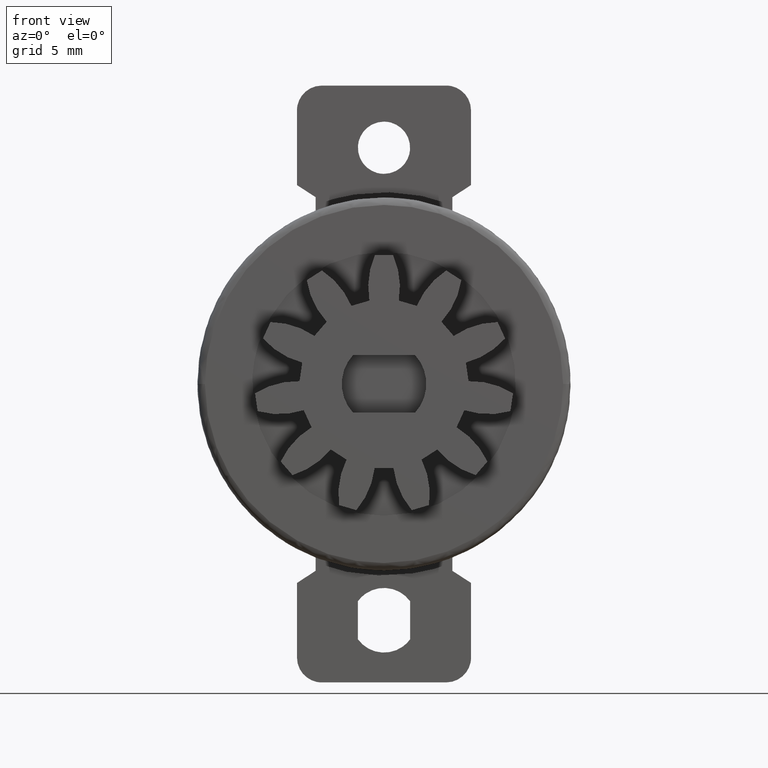
[diagram: clean part render]
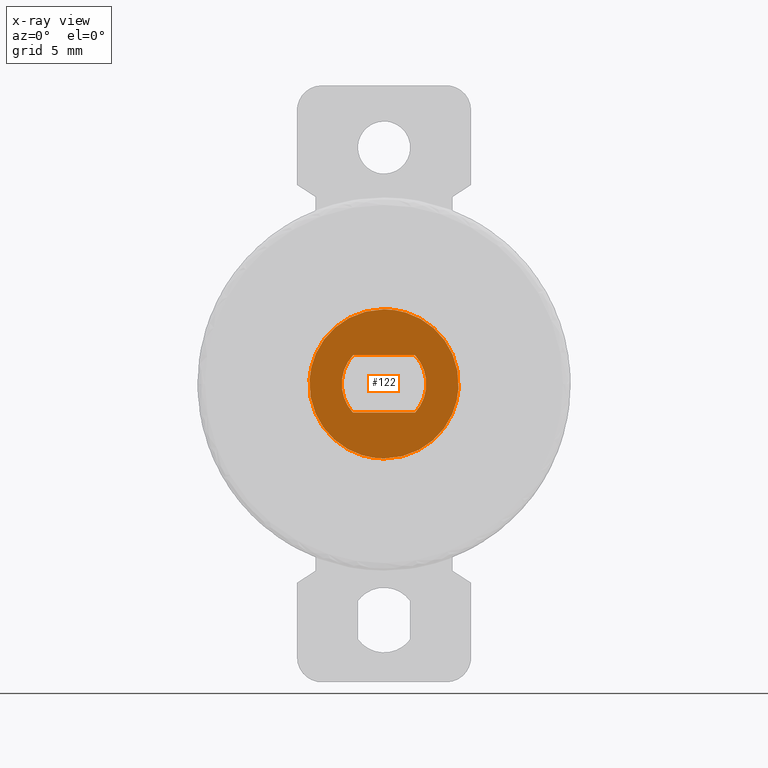
[diagram: x-ray — body ghosted, one internal face saturated and labeled with its STEP entity id]
A machine part, front view, then the same camera in x-ray: the body is ghosted and one INTERNAL B-rep face — a face not visible from any outside direction — is saturated and labeled: STEP entity #122.
In plain terms, the highlighted face is a freeform B-spline surface patch.
Its self-contained STEP definition (entity closure, byte-faithful):
#5=CARTESIAN_POINT('',(-3.299626161927576,-3.400000000000000,-3.299699988370836));
#6=CARTESIAN_POINT('',(3.299626054639215,-3.400000000000000,-3.299699988370836));
#7=CARTESIAN_POINT('',(-3.299626161927576,-3.400000000000000,3.299700149303376));
#8=CARTESIAN_POINT('',(3.299626054639215,-3.400000000000000,3.299700149303376));
#9=B_SPLINE_SURFACE_WITH_KNOTS('',1,1,((#5,#7),(#6,#8)),.UNSPECIFIED.,.F.,.F.,.U.,(2,2),(2,2),(0.0,6.599252216566791),(0.0,6.599400137674213),.UNSPECIFIED.);
#10=CARTESIAN_POINT('',(-2.994404395263868,-3.399999999999960,0.183145618632901));
#11=VERTEX_POINT('',#10);
#12=CARTESIAN_POINT('',(0.0,-3.399999999999960,-3.0));
#13=VERTEX_POINT('',#12);
#14=CARTESIAN_POINT('',(-2.994404395263869,-3.399999999999960,0.183145618632901));
#15=CARTESIAN_POINT('',(-3.000000000000000,-3.399999999999960,0.091658289909971));
#16=CARTESIAN_POINT('',(-3.0,-3.399999999999960,0.0));
#17=CARTESIAN_POINT('',(-3.0,-3.399999999999959,-3.0));
#18=CARTESIAN_POINT('',(0.0,-3.399999999999960,-3.0));
#26=(BOUNDED_CURVE()B_SPLINE_CURVE(2,(#14,#15,#16,#17,#18),.UNSPECIFIED.,.F.,.U.)B_SPLINE_CURVE_WITH_KNOTS((3,2,3),(0.739332962240336,0.750000000000000,1.0),.UNSPECIFIED.)CURVE()GEOMETRIC_REPRESENTATION_ITEM()RATIONAL_B_SPLINE_CURVE((0.976072041669703,0.987502787901469,1.0,0.707106781186548,1.0))REPRESENTATION_ITEM(''));
#27=EDGE_CURVE('',#11,#13,#26,.T.);
#28=ORIENTED_EDGE('',*,*,#27,.F.);
#29=CARTESIAN_POINT('',(0.0,-3.399999999999960,3.0));
#30=VERTEX_POINT('',#29);
#31=CARTESIAN_POINT('',(0.0,-3.399999999999960,3.0));
#32=CARTESIAN_POINT('',(-2.822118200690335,-3.399999999999959,3.000000000000000));
#33=CARTESIAN_POINT('',(-2.994404395263869,-3.399999999999960,0.183145618632901));
#41=(BOUNDED_CURVE()B_SPLINE_CURVE(2,(#31,#32,#33),.UNSPECIFIED.,.F.,.U.)B_SPLINE_CURVE_WITH_KNOTS((3,3),(0.500000000000000,0.739332962240336),.UNSPECIFIED.)CURVE()GEOMETRIC_REPRESENTATION_ITEM()RATIONAL_B_SPLINE_CURVE((1.0,0.719603993285078,0.976072041669703))REPRESENTATION_ITEM(''));
#42=EDGE_CURVE('',#30,#11,#41,.T.);
#43=ORIENTED_EDGE('',*,*,#42,.F.);
#44=CARTESIAN_POINT('',(2.994404395263868,-3.399999999999960,-0.183145618632901));
#45=VERTEX_POINT('',#44);
#46=CARTESIAN_POINT('',(2.994404395263869,-3.399999999999959,-0.183145618632900));
#47=CARTESIAN_POINT('',(3.0,-3.399999999999960,-0.091658289909971));
#48=CARTESIAN_POINT('',(3.0,-3.399999999999960,0.0));
#49=CARTESIAN_POINT('',(3.0,-3.399999999999959,3.0));
#50=CARTESIAN_POINT('',(0.0,-3.399999999999960,3.0));
#58=(BOUNDED_CURVE()B_SPLINE_CURVE(2,(#46,#47,#48,#49,#50),.UNSPECIFIED.,.F.,.U.)B_SPLINE_CURVE_WITH_KNOTS((3,2,3),(0.239332962240336,0.250000000000000,0.500000000000000),.UNSPECIFIED.)CURVE()GEOMETRIC_REPRESENTATION_ITEM()RATIONAL_B_SPLINE_CURVE((0.976072041669703,0.987502787901469,1.0,0.707106781186548,1.0))REPRESENTATION_ITEM(''));
#59=EDGE_CURVE('',#45,#30,#58,.T.);
#60=ORIENTED_EDGE('',*,*,#59,.F.);
#61=CARTESIAN_POINT('',(0.0,-3.399999999999960,-3.0));
#62=CARTESIAN_POINT('',(2.822118200690335,-3.399999999999960,-3.000000000000001));
#63=CARTESIAN_POINT('',(2.994404395263869,-3.399999999999959,-0.183145618632900));
#71=(BOUNDED_CURVE()B_SPLINE_CURVE(2,(#61,#62,#63),.UNSPECIFIED.,.F.,.U.)B_SPLINE_CURVE_WITH_KNOTS((3,3),(0.0,0.239332962240336),.UNSPECIFIED.)CURVE()GEOMETRIC_REPRESENTATION_ITEM()RATIONAL_B_SPLINE_CURVE((1.0,0.719603993285078,0.976072041669703))REPRESENTATION_ITEM(''));
#72=EDGE_CURVE('',#13,#45,#71,.T.);
#73=ORIENTED_EDGE('',*,*,#72,.F.);
#74=EDGE_LOOP('',(#28,#43,#60,#73));
#75=FACE_OUTER_BOUND('',#74,.T.);
#76=CARTESIAN_POINT('',(-1.251998402554902,-3.399999999999180,-1.149999999999988));
#77=VERTEX_POINT('',#76);
#78=CARTESIAN_POINT('',(1.251998402554874,-3.400000000000000,-1.150000000000000));
#79=VERTEX_POINT('',#78);
#80=CARTESIAN_POINT('',(-1.251998402554902,-3.399999999999180,-1.149999999999988));
#81=CARTESIAN_POINT('',(1.251998402554874,-3.400000000000000,-1.150000000000000));
#82=QUASI_UNIFORM_CURVE('',1,(#80,#81),.UNSPECIFIED.,.F.,.U.);
#83=EDGE_CURVE('',#77,#79,#82,.T.);
#84=ORIENTED_EDGE('',*,*,#83,.T.);
#85=CARTESIAN_POINT('',(1.251998402554874,-3.399999999999180,1.150000000000000));
#86=VERTEX_POINT('',#85);
#87=CARTESIAN_POINT('',(1.251998402554874,-3.400000000000000,-1.150000000000000));
#88=CARTESIAN_POINT('',(2.308309654471234,-3.399999999999180,-4.336809E-016));
#89=CARTESIAN_POINT('',(1.251998402554884,-3.399999999999180,1.150000000000008));
#97=(BOUNDED_CURVE()B_SPLINE_CURVE(2,(#87,#88,#89),.UNSPECIFIED.,.F.,.U.)CURVE()GEOMETRIC_REPRESENTATION_ITEM()QUASI_UNIFORM_CURVE()RATIONAL_B_SPLINE_CURVE((1.0,0.736469648561696,1.0))REPRESENTATION_ITEM(''));
#98=EDGE_CURVE('',#79,#86,#97,.T.);
#99=ORIENTED_EDGE('',*,*,#98,.T.);
#100=CARTESIAN_POINT('',(-1.251998402554904,-3.399999999999180,1.150000000000000));
#101=VERTEX_POINT('',#100);
#102=CARTESIAN_POINT('',(1.251998402554874,-3.399999999999180,1.150000000000000));
#103=CARTESIAN_POINT('',(-1.251998402554904,-3.399999999999180,1.150000000000000));
#104=QUASI_UNIFORM_CURVE('',1,(#102,#103),.UNSPECIFIED.,.F.,.U.);
#105=EDGE_CURVE('',#86,#101,#104,.T.);
#106=ORIENTED_EDGE('',*,*,#105,.T.);
#107=CARTESIAN_POINT('',(-1.251998402554897,-3.399999999999180,1.149999999999994));
#108=CARTESIAN_POINT('',(-2.308309654471203,-3.399999999999180,5.421011E-015));
#109=CARTESIAN_POINT('',(-1.251998402554903,-3.399999999999180,-1.149999999999988));
#117=(BOUNDED_CURVE()B_SPLINE_CURVE(2,(#107,#108,#109),.UNSPECIFIED.,.F.,.U.)CURVE()GEOMETRIC_REPRESENTATION_ITEM()QUASI_UNIFORM_CURVE()RATIONAL_B_SPLINE_CURVE((1.0,0.736469648561706,1.0))REPRESENTATION_ITEM(''));
#118=EDGE_CURVE('',#101,#77,#117,.T.);
#119=ORIENTED_EDGE('',*,*,#118,.T.);
#120=EDGE_LOOP('',(#84,#99,#106,#119));
#121=FACE_BOUND('',#120,.T.);
#122=ADVANCED_FACE('',(#75,#121),#9,.F.);